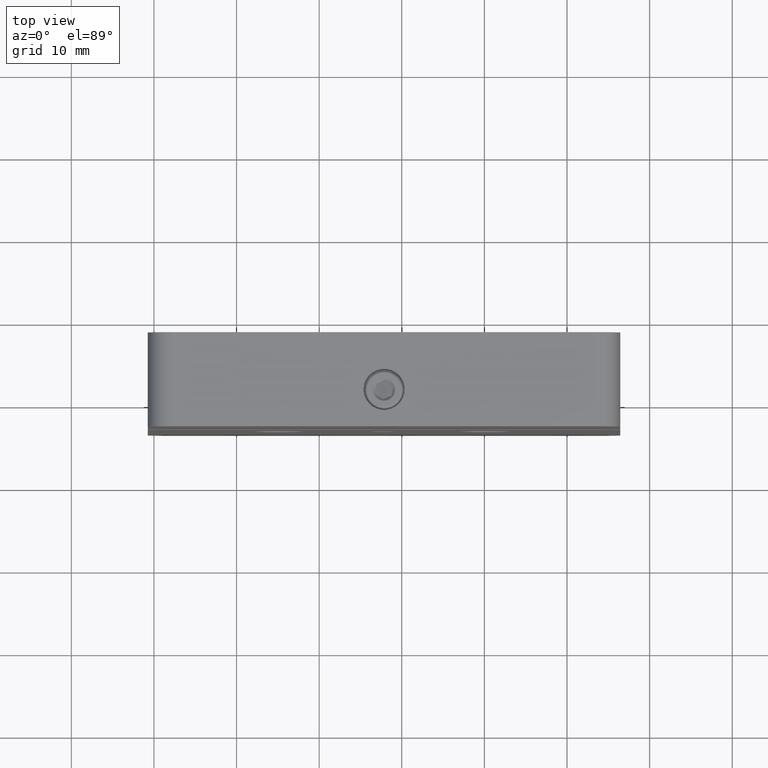
[diagram: clean part render]
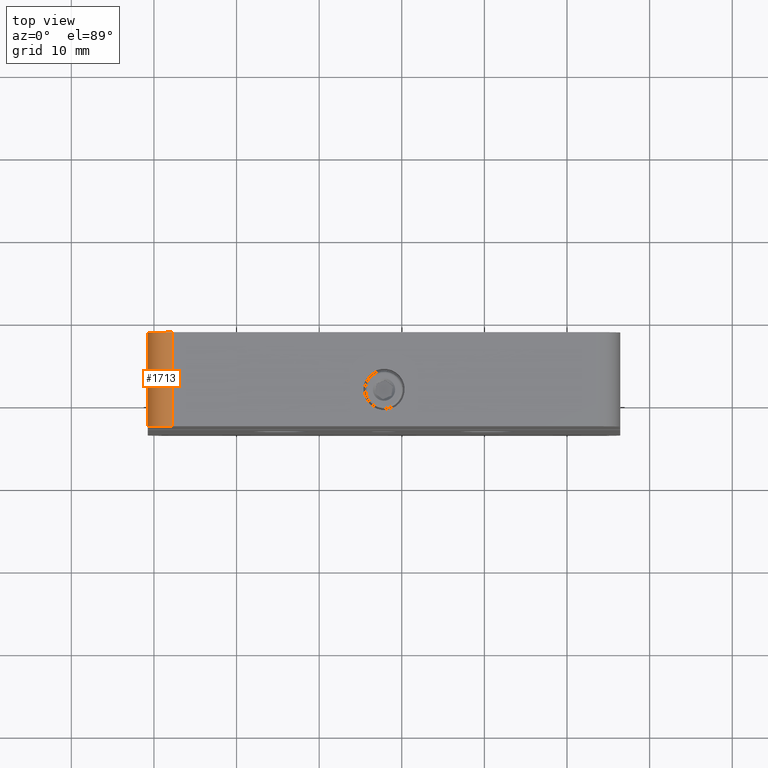
[diagram: same view with one face highlighted and labeled with its STEP entity id]
A machine part, top view. The second image highlights one B-rep face of the part: STEP entity #1713.
In plain terms, the highlighted cylindrical surface (edge-blend (fillet) strip) has radius 3 mm, axis along (-0, -1, 0).
Its self-contained STEP definition (entity closure, byte-faithful):
#18 = AXIS2_PLACEMENT_3D ( 'NONE', #1891, #2135, #1572 ) ;
#48 = ORIENTED_EDGE ( 'NONE', *, *, #1659, .F. ) ;
#70 = AXIS2_PLACEMENT_3D ( 'NONE', #1033, #3541, #2425 ) ;
#247 = AXIS2_PLACEMENT_3D ( 'NONE', #769, #2693, #1893 ) ;
#249 = VERTEX_POINT ( 'NONE', #2196 ) ;
#270 = CARTESIAN_POINT ( 'NONE',  ( 25.60000000000000497, 11.40000000000000036, -11.45000000000000107 ) ) ;
#304 = CIRCLE ( 'NONE', #247, 3.000000000000000000 ) ;
#769 = CARTESIAN_POINT ( 'NONE',  ( 25.60000000000000497, 11.40000000000000036, -8.450000000000002842 ) ) ;
#867 = CARTESIAN_POINT ( 'NONE',  ( 28.60000000000000853, 0.000000000000000000, -8.450000000000002842 ) ) ;
#1000 = DIRECTION ( 'NONE',  ( 0.000000000000000000, -1.000000000000000000, 0.000000000000000000 ) ) ;
#1033 = CARTESIAN_POINT ( 'NONE',  ( 25.60000000000000497, 0.000000000000000000, -8.450000000000002842 ) ) ;
#1104 = CIRCLE ( 'NONE', #70, 3.000000000000000000 ) ;
#1215 = EDGE_CURVE ( 'NONE', #249, #3279, #304, .T. ) ;
#1315 = CYLINDRICAL_SURFACE ( 'NONE', #18, 2.999999999999999112 ) ;
#1420 = CARTESIAN_POINT ( 'NONE',  ( 25.60000000000000497, 11.40000000000000036, -11.45000000000000107 ) ) ;
#1572 = DIRECTION ( 'NONE',  ( 0.000000000000000000, 0.000000000000000000, -1.000000000000000000 ) ) ;
#1659 = EDGE_CURVE ( 'NONE', #2361, #2380, #1104, .T. ) ;
#1713 = ADVANCED_FACE ( 'NONE', ( #2464 ), #1315, .T. ) ;
#1770 = EDGE_CURVE ( 'NONE', #3279, #2361, #3013, .T. ) ;
#1891 = CARTESIAN_POINT ( 'NONE',  ( 25.60000000000000497, 11.40000000000000036, -8.450000000000002842 ) ) ;
#1893 = DIRECTION ( 'NONE',  ( 0.000000000000000000, 0.000000000000000000, 1.000000000000000000 ) ) ;
#1903 = DIRECTION ( 'NONE',  ( -0.000000000000000000, 1.000000000000000000, -0.000000000000000000 ) ) ;
#2058 = EDGE_LOOP ( 'NONE', ( #2263, #2098, #48, #3001 ) ) ;
#2098 = ORIENTED_EDGE ( 'NONE', *, *, #2746, .F. ) ;
#2135 = DIRECTION ( 'NONE',  ( 0.000000000000000000, -1.000000000000000000, 0.000000000000000000 ) ) ;
#2167 = LINE ( 'NONE', #2493, #3540 ) ;
#2196 = CARTESIAN_POINT ( 'NONE',  ( 28.60000000000000853, 11.40000000000000036, -8.450000000000002842 ) ) ;
#2263 = ORIENTED_EDGE ( 'NONE', *, *, #1215, .F. ) ;
#2285 = CARTESIAN_POINT ( 'NONE',  ( 25.60000000000000497, 0.000000000000000000, -11.45000000000000107 ) ) ;
#2361 = VERTEX_POINT ( 'NONE', #2285 ) ;
#2380 = VERTEX_POINT ( 'NONE', #867 ) ;
#2425 = DIRECTION ( 'NONE',  ( 0.000000000000000000, 0.000000000000000000, 1.000000000000000000 ) ) ;
#2464 = FACE_OUTER_BOUND ( 'NONE', #2058, .T. ) ;
#2493 = CARTESIAN_POINT ( 'NONE',  ( 28.60000000000000853, 11.40000000000000036, -8.450000000000002842 ) ) ;
#2693 = DIRECTION ( 'NONE',  ( 0.000000000000000000, 1.000000000000000000, 0.000000000000000000 ) ) ;
#2746 = EDGE_CURVE ( 'NONE', #2380, #249, #2167, .T. ) ;
#3001 = ORIENTED_EDGE ( 'NONE', *, *, #1770, .F. ) ;
#3013 = LINE ( 'NONE', #270, #3289 ) ;
#3279 = VERTEX_POINT ( 'NONE', #1420 ) ;
#3289 = VECTOR ( 'NONE', #1000, 1000.000000000000000 ) ;
#3540 = VECTOR ( 'NONE', #1903, 1000.000000000000000 ) ;
#3541 = DIRECTION ( 'NONE',  ( -0.000000000000000000, -1.000000000000000000, -0.000000000000000000 ) ) ;